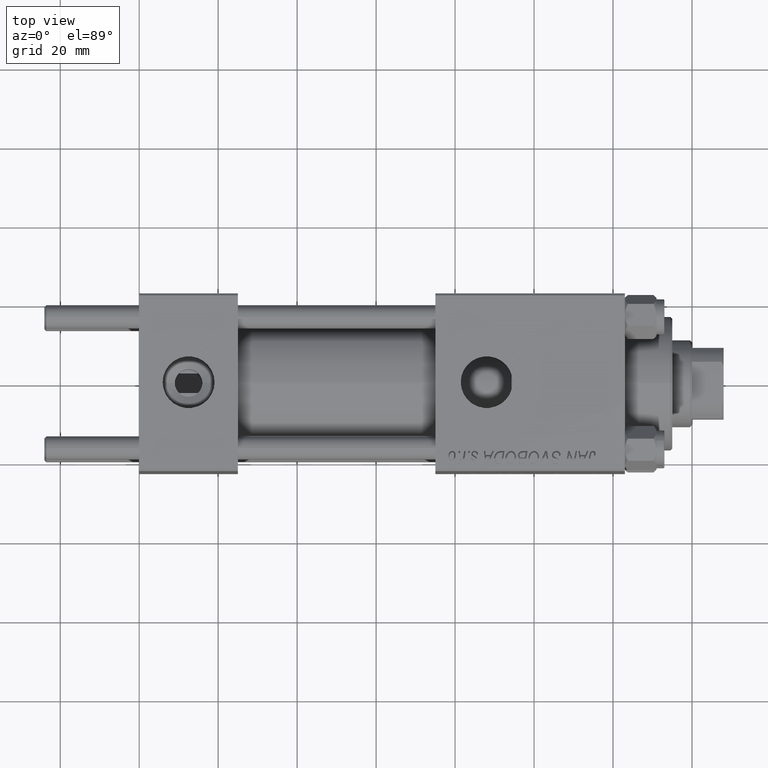
[diagram: clean part render]
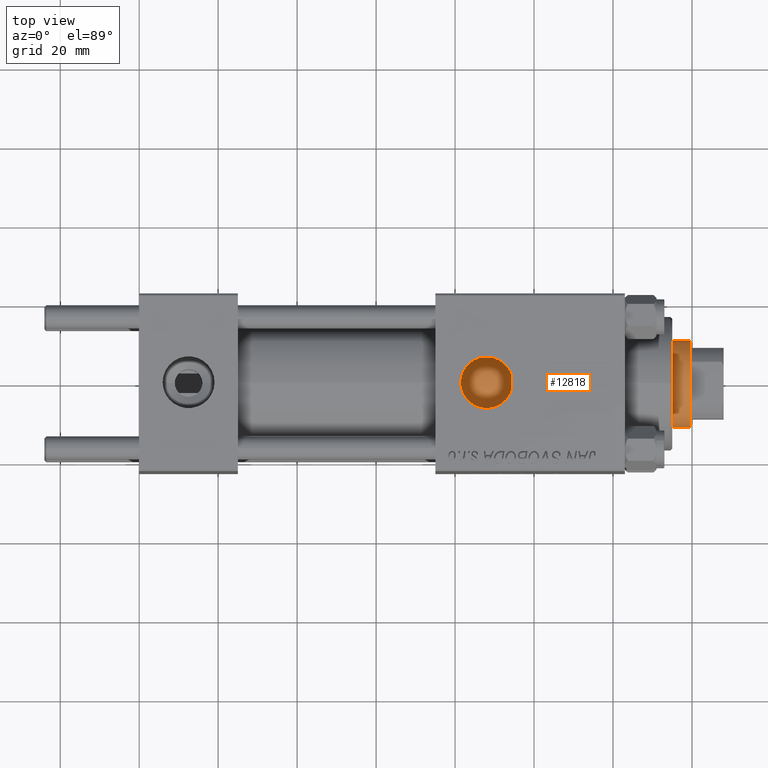
[diagram: same view with one face highlighted and labeled with its STEP entity id]
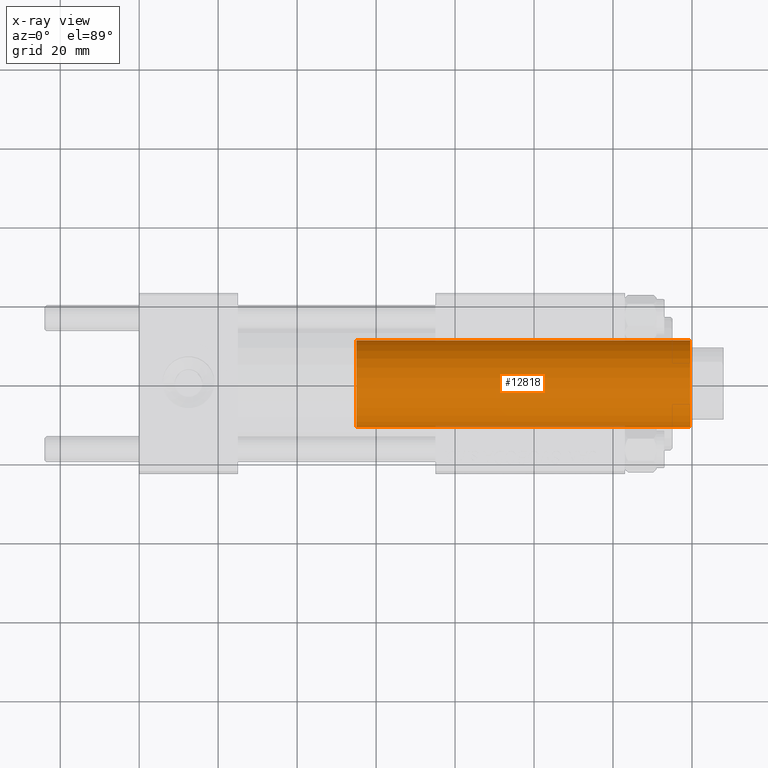
[diagram: x-ray of the same camera — body ghosted, the highlighted face saturated]
A machine part, top view. The second image highlights one B-rep face of the part: STEP entity #12818.
The next image is the same camera in x-ray: the body ghosted, the highlighted face saturated — about 2% of this face is hidden behind the body in this view.
In plain terms, the highlighted cylindrical surface (partial cylindrical patch) has radius 11 mm, axis along (-1, 0, 0).
Its self-contained STEP definition (entity closure, byte-faithful):
#304 = VERTEX_POINT ( 'NONE', #47660 ) ;
#1815 = CARTESIAN_POINT ( 'NONE',  ( -11.00000000000000000, 0.000000000000000000, 114.5000000000000142 ) ) ;
#3616 = CARTESIAN_POINT ( 'NONE',  ( 0.000000000000000000, 0.000000000000000000, 115.0000000000000000 ) ) ;
#4893 = VERTEX_POINT ( 'NONE', #23587 ) ;
#4913 = DIRECTION ( 'NONE',  ( 1.000000000000000000, 0.000000000000000000, 0.000000000000000000 ) ) ;
#7824 = EDGE_CURVE ( 'NONE', #4893, #24364, #41817, .T. ) ;
#10449 = EDGE_LOOP ( 'NONE', ( #16408, #11532, #14201, #16967 ) ) ;
#11532 = ORIENTED_EDGE ( 'NONE', *, *, #7824, .T. ) ;
#11914 = EDGE_CURVE ( 'NONE', #4893, #13511, #42315, .T. ) ;
#12032 = DIRECTION ( 'NONE',  ( -0.000000000000000000, -0.000000000000000000, -1.000000000000000000 ) ) ;
#12818 = ADVANCED_FACE ( 'NONE', ( #40724 ), #35732, .T. ) ;
#12962 = CARTESIAN_POINT ( 'NONE',  ( 0.000000000000000000, 0.000000000000000000, 114.5000000000000142 ) ) ;
#13065 = LINE ( 'NONE', #25668, #20791 ) ;
#13511 = VERTEX_POINT ( 'NONE', #21575 ) ;
#14201 = ORIENTED_EDGE ( 'NONE', *, *, #19735, .T. ) ;
#16408 = ORIENTED_EDGE ( 'NONE', *, *, #11914, .F. ) ;
#16967 = ORIENTED_EDGE ( 'NONE', *, *, #37757, .T. ) ;
#17450 = AXIS2_PLACEMENT_3D ( 'NONE', #12962, #24537, #28210 ) ;
#19735 = EDGE_CURVE ( 'NONE', #24364, #304, #13065, .T. ) ;
#19800 = VECTOR ( 'NONE', #38379, 1000.000000000000000 ) ;
#20791 = VECTOR ( 'NONE', #25417, 1000.000000000000000 ) ;
#21575 = CARTESIAN_POINT ( 'NONE',  ( 11.00000000000000000, 1.347111479062088405E-15, 30.00000000000000000 ) ) ;
#23587 = CARTESIAN_POINT ( 'NONE',  ( 11.00000000000000000, 1.347111479062088405E-15, 114.5000000000000142 ) ) ;
#24364 = VERTEX_POINT ( 'NONE', #1815 ) ;
#24537 = DIRECTION ( 'NONE',  ( 0.000000000000000000, 0.000000000000000000, -1.000000000000000000 ) ) ;
#25417 = DIRECTION ( 'NONE',  ( -0.000000000000000000, -0.000000000000000000, -1.000000000000000000 ) ) ;
#25668 = CARTESIAN_POINT ( 'NONE',  ( -11.00000000000000000, 0.000000000000000000, 115.0000000000000000 ) ) ;
#27377 = AXIS2_PLACEMENT_3D ( 'NONE', #3616, #12032, #51774 ) ;
#28210 = DIRECTION ( 'NONE',  ( 1.000000000000000000, 0.000000000000000000, 0.000000000000000000 ) ) ;
#31389 = AXIS2_PLACEMENT_3D ( 'NONE', #31482, #47559, #4913 ) ;
#31482 = CARTESIAN_POINT ( 'NONE',  ( 0.000000000000000000, 0.000000000000000000, 30.00000000000000000 ) ) ;
#35732 = CYLINDRICAL_SURFACE ( 'NONE', #27377, 11.00000000000000000 ) ;
#37757 = EDGE_CURVE ( 'NONE', #304, #13511, #47344, .T. ) ;
#38379 = DIRECTION ( 'NONE',  ( -0.000000000000000000, -0.000000000000000000, -1.000000000000000000 ) ) ;
#40724 = FACE_OUTER_BOUND ( 'NONE', #10449, .T. ) ;
#41817 = CIRCLE ( 'NONE', #17450, 11.00000000000000000 ) ;
#42315 = LINE ( 'NONE', #46553, #19800 ) ;
#46553 = CARTESIAN_POINT ( 'NONE',  ( 11.00000000000000000, 1.347111479062088405E-15, 115.0000000000000000 ) ) ;
#47344 = CIRCLE ( 'NONE', #31389, 11.00000000000000000 ) ;
#47559 = DIRECTION ( 'NONE',  ( 0.000000000000000000, 0.000000000000000000, 1.000000000000000000 ) ) ;
#47660 = CARTESIAN_POINT ( 'NONE',  ( -11.00000000000000000, 0.000000000000000000, 30.00000000000000000 ) ) ;
#51774 = DIRECTION ( 'NONE',  ( -1.000000000000000000, 0.000000000000000000, 0.000000000000000000 ) ) ;